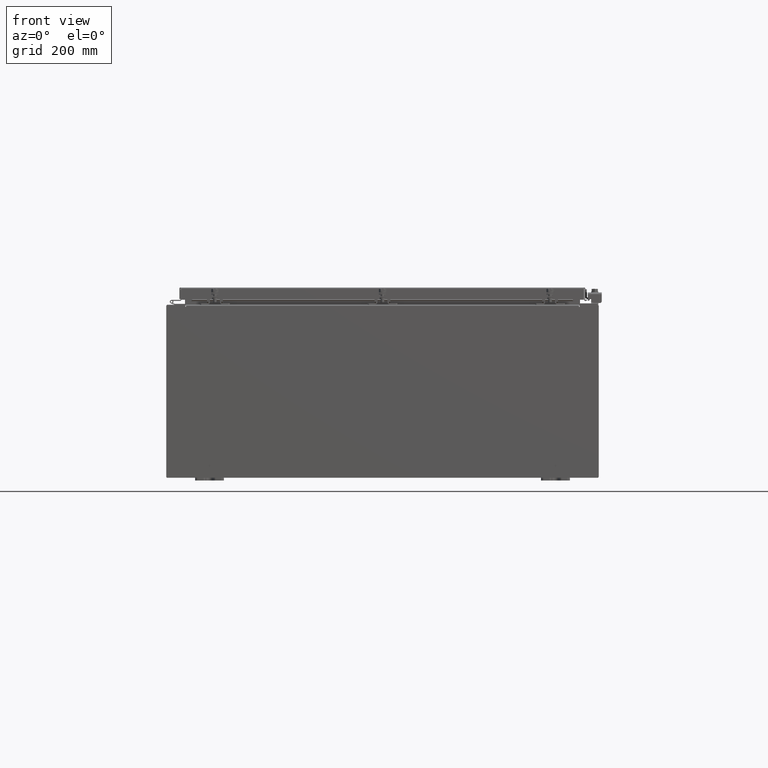
[diagram: clean part render]
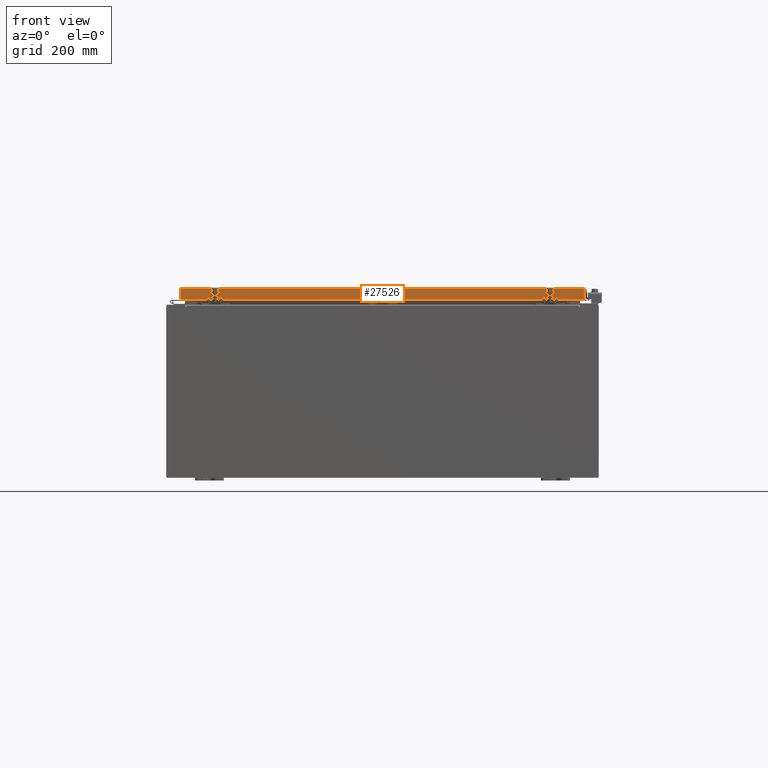
[diagram: same view with one face highlighted and labeled with its STEP entity id]
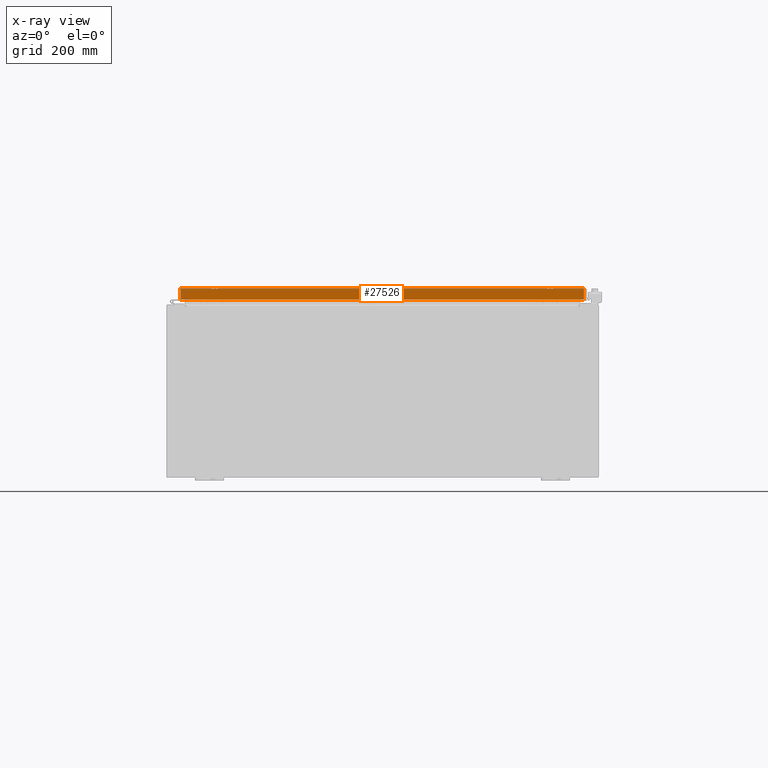
[diagram: x-ray of the same camera — body ghosted, the highlighted face saturated]
A machine part, front view. The second image highlights one B-rep face of the part: STEP entity #27526.
The next image is the same camera in x-ray: the body ghosted, the highlighted face saturated — about 0% of this face is hidden behind the body in this view.
In plain terms, the highlighted planar face has unit normal (-0, 1, -0).
Its self-contained STEP definition (entity closure, byte-faithful):
#671 = VECTOR ( 'NONE', #8542, 39.37007874015748100 ) ;
#3594 = DIRECTION ( 'NONE',  ( 0.0000000000000000000, 2.818880942772360100E-015, 1.000000000000000000 ) ) ;
#4608 = DIRECTION ( 'NONE',  ( 1.000000000000000000, 3.418789178101959700E-031, -9.318824769679573900E-046 ) ) ;
#4704 = CARTESIAN_POINT ( 'NONE',  ( 14.07799999999999400, -17.09400000000000100, -0.08770000000000007000 ) ) ;
#5261 = CARTESIAN_POINT ( 'NONE',  ( -13.98915786437627800, -17.09400000000000100, -0.08770000000000007000 ) ) ;
#6481 = VECTOR ( 'NONE', #37720, 39.37007874015748100 ) ;
#6598 = VECTOR ( 'NONE', #29345, 39.37007874015748100 ) ;
#7537 = LINE ( 'NONE', #34365, #6481 ) ;
#7646 = LINE ( 'NONE', #29639, #6598 ) ;
#7806 = LINE ( 'NONE', #16493, #42156 ) ;
#8136 = EDGE_LOOP ( 'NONE', ( #37032, #18081, #17751, #29507, #21196, #8455 ) ) ;
#8381 = EDGE_CURVE ( 'NONE', #25998, #40415, #7646, .T. ) ;
#8455 = ORIENTED_EDGE ( 'NONE', *, *, #28347, .F. ) ;
#8542 = DIRECTION ( 'NONE',  ( -0.0000000000000000000, -2.818880942772360100E-015, -1.000000000000000000 ) ) ;
#12594 = EDGE_CURVE ( 'NONE', #25998, #16802, #26537, .T. ) ;
#13394 = AXIS2_PLACEMENT_3D ( 'NONE', #26704, #23507, #3594 ) ;
#16493 = CARTESIAN_POINT ( 'NONE',  ( 14.07799999999999400, -17.09400000000000100, -0.8499999999999996400 ) ) ;
#16802 = VERTEX_POINT ( 'NONE', #22196 ) ;
#17751 = ORIENTED_EDGE ( 'NONE', *, *, #31441, .F. ) ;
#17760 = VECTOR ( 'NONE', #37336, 39.37007874015748100 ) ;
#18081 = ORIENTED_EDGE ( 'NONE', *, *, #8381, .T. ) ;
#19698 = CARTESIAN_POINT ( 'NONE',  ( -13.23915786437627800, -17.09399999999999800, -0.8500000000000006400 ) ) ;
#20141 = PLANE ( 'NONE',  #13394 ) ;
#21196 = ORIENTED_EDGE ( 'NONE', *, *, #40154, .F. ) ;
#22196 = CARTESIAN_POINT ( 'NONE',  ( 13.98915786437626500, -17.09400000000000100, -0.08770000000000007000 ) ) ;
#22328 = VERTEX_POINT ( 'NONE', #19698 ) ;
#22501 = EDGE_CURVE ( 'NONE', #28989, #22328, #26588, .T. ) ;
#23507 = DIRECTION ( 'NONE',  ( -3.418789178101958800E-031, 1.000000000000000000, -2.818880942772360100E-015 ) ) ;
#23923 = CARTESIAN_POINT ( 'NONE',  ( 13.23915786437626000, -17.09399999999999800, -0.8500000000000006400 ) ) ;
#25187 = CARTESIAN_POINT ( 'NONE',  ( 13.98915786437626400, -17.09400000000000100, -0.07469999999999978000 ) ) ;
#25998 = VERTEX_POINT ( 'NONE', #5261 ) ;
#26211 = LINE ( 'NONE', #25187, #671 ) ;
#26537 = LINE ( 'NONE', #4704, #43275 ) ;
#26588 = LINE ( 'NONE', #23923, #17760 ) ;
#26704 = CARTESIAN_POINT ( 'NONE',  ( 5.844078221047488100E-030, -17.09400000000000100, 4.844676449176230700E-014 ) ) ;
#27526 = ADVANCED_FACE ( 'NONE', ( #37755 ), #20141, .F. ) ;
#28347 = EDGE_CURVE ( 'NONE', #16802, #36983, #26211, .T. ) ;
#28989 = VERTEX_POINT ( 'NONE', #38695 ) ;
#29345 = DIRECTION ( 'NONE',  ( 0.0000000000000000000, -2.818880942772360100E-015, -1.000000000000000000 ) ) ;
#29507 = ORIENTED_EDGE ( 'NONE', *, *, #22501, .F. ) ;
#29639 = CARTESIAN_POINT ( 'NONE',  ( -13.98915786437627600, -17.09400000000000100, 4.844676449176230700E-014 ) ) ;
#29660 = CARTESIAN_POINT ( 'NONE',  ( 13.98915786437626400, -17.09400000000000100, -0.8499999999999996400 ) ) ;
#31441 = EDGE_CURVE ( 'NONE', #22328, #40415, #7806, .T. ) ;
#34365 = CARTESIAN_POINT ( 'NONE',  ( 14.07799999999999400, -17.09400000000000100, -0.8499999999999996400 ) ) ;
#35807 = CARTESIAN_POINT ( 'NONE',  ( -13.98915786437627800, -17.09400000000000100, -0.8499999999999963100 ) ) ;
#36983 = VERTEX_POINT ( 'NONE', #29660 ) ;
#37032 = ORIENTED_EDGE ( 'NONE', *, *, #12594, .F. ) ;
#37336 = DIRECTION ( 'NONE',  ( -1.000000000000000000, 0.0000000000000000000, 0.0000000000000000000 ) ) ;
#37720 = DIRECTION ( 'NONE',  ( -1.000000000000000000, 4.379057701015054300E-047, 1.212817869044015600E-016 ) ) ;
#37755 = FACE_OUTER_BOUND ( 'NONE', #8136, .T. ) ;
#38695 = CARTESIAN_POINT ( 'NONE',  ( 13.23915786437626000, -17.09399999999999800, -0.8500000000000006400 ) ) ;
#40154 = EDGE_CURVE ( 'NONE', #36983, #28989, #7537, .T. ) ;
#40415 = VERTEX_POINT ( 'NONE', #35807 ) ;
#42156 = VECTOR ( 'NONE', #43116, 39.37007874015748100 ) ;
#43116 = DIRECTION ( 'NONE',  ( -1.000000000000000000, 4.379057701015054300E-047, 1.212817869044015600E-016 ) ) ;
#43275 = VECTOR ( 'NONE', #4608, 39.37007874015748100 ) ;